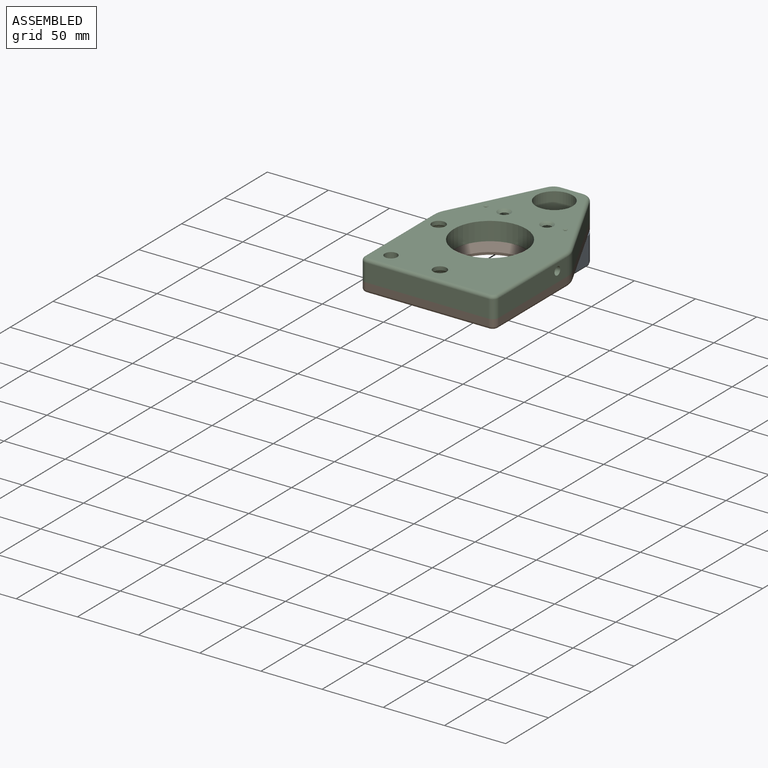
[diagram: assembled view]
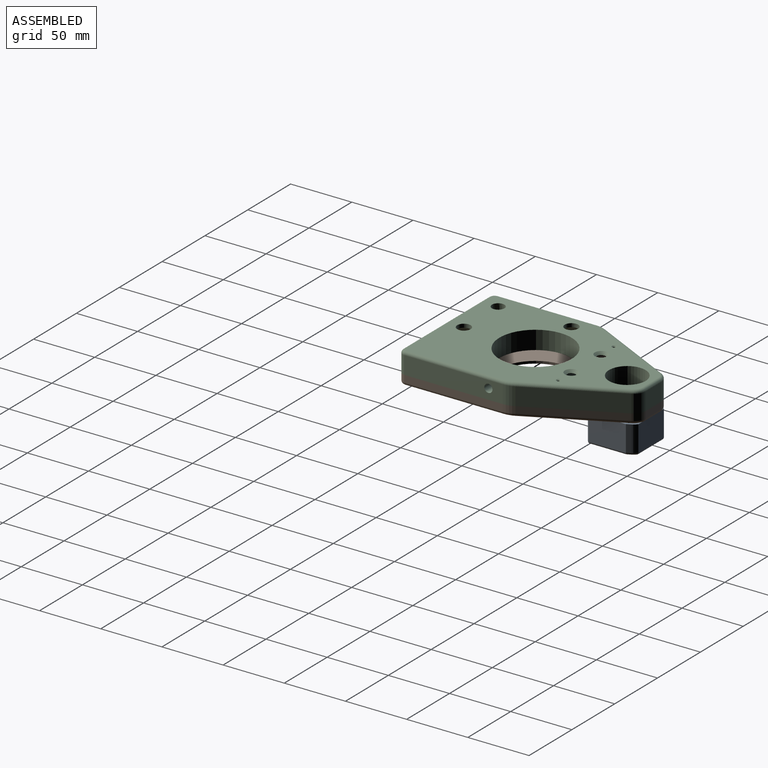
[diagram: assembled view, second angle]
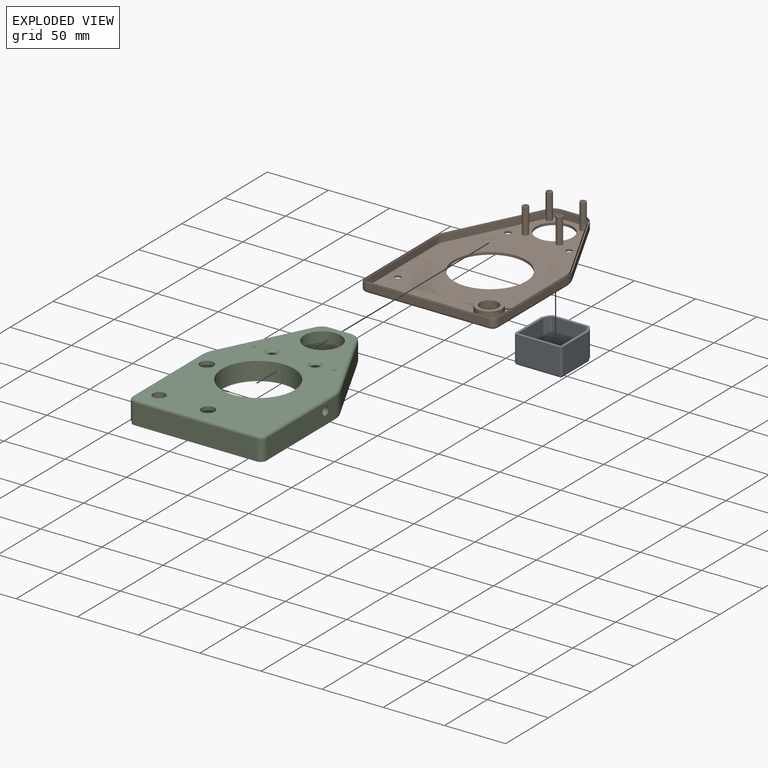
[diagram: exploded view]
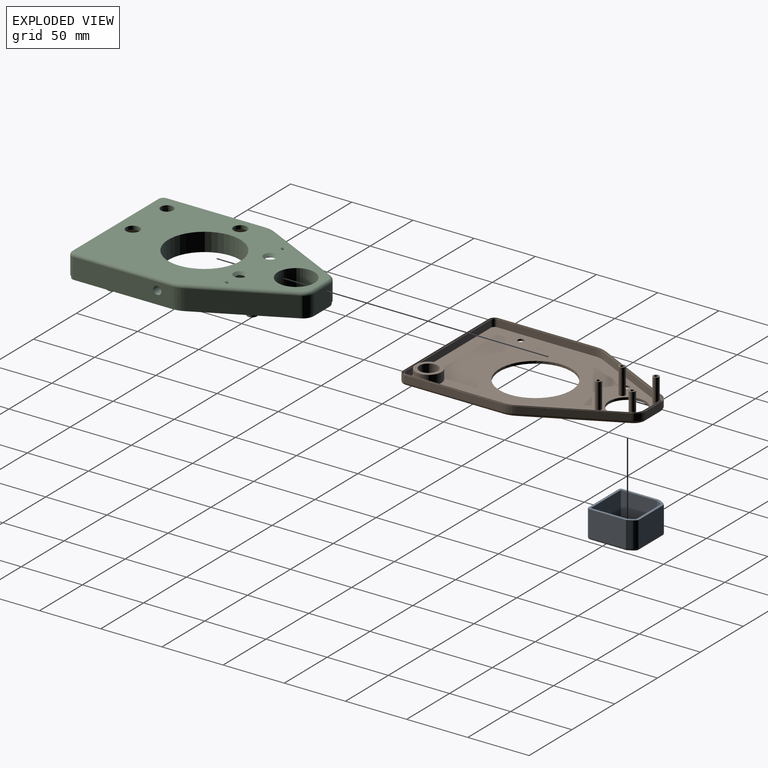
[diagram: exploded view, second angle]
ASSEMBLY  parts=3 mates=2
PART A: 33 faces, bbox 39x39.7x23 mm
  f0: plane 30x21mm, normal (-1,0,0), area 630mm2, adj f1,f9,f20,f22
  f1: plane 21x3.47mm, normal (-0.89,0.45,0), area 81.5mm2, adj f0,f2,f9,f25
  f2: cylinder r=10mm len=21mm, axis (0,0,1), area 97.4mm2, adj f1,f3,f9,f27
  f3: plane 29.64x21mm, normal (0,1,0), area 622.4mm2, adj f2,f4,f9,f29
  f4: cylinder r=10mm len=21mm, axis (0,0,1), area 97.4mm2, adj f3,f5,f9,f31
  f5: plane 21x3.47mm, normal (0.89,0.45,0), area 81.5mm2, adj f4,f6,f9,f30
  f6: plane 30x21mm, normal (1,0,0), area 630mm2, adj f5,f9,f24,f28
  f7: plane 35x21mm, normal (0,-1,0), area 735mm2, adj f9,f20,f23,f24
  f8: plane 35x35mm, normal (0,0,-1), area 1136.1mm2, adj f19,f22,f23,f25,f27,f28,f29,f30
  f9: plane 39x39mm, normal (0,0,1), area 283.2mm2, adj f0,f1,f2,f3,f4,f5,f6,f7
  f10: plane 29.53x21mm, normal (1,0,0), area 620.1mm2, adj f9,f11,f17,f18
  f11: plane 21x3.05mm, normal (0.89,-0.45,0), area 71.6mm2, adj f9,f10,f12,f18
  f12: cylinder r=8mm len=21mm, axis (0,0,1), area 64.6mm2, adj f9,f11,f13,f18
  f13: plane 28.22x21mm, normal (0,-1,0), area 592.7mm2, adj f9,f12,f14,f18
  f14: cylinder r=8mm len=21mm, axis (0,0,1), area 64.6mm2, adj f9,f13,f15,f18
  f15: plane 21x3.05mm, normal (-0.89,-0.45,0), area 71.6mm2, adj f9,f14,f16,f18
  f16: plane 29.53x21mm, normal (-1,0,0), area 620.1mm2, adj f9,f15,f17,f18
  f17: plane 35x21mm, normal (0,1,0), area 735mm2, adj f9,f10,f16,f18
  f18: plane 35x35mm, normal (0,0,1), area 1194.9mm2, adj f10,f11,f12,f13,f14,f15,f16,f17
  f19: torus R=3.5mm, axis (0,0,-1), area 44mm2, adj f8,f18
  f20: cylinder r=2mm len=21mm, axis (0,0,-1), area 66mm2, adj f0,f7,f9,f21
  f21: sphere r=2mm, area 6.3mm2, adj f20,f22,f23
  f22: cylinder r=2mm len=30mm, axis (0,-1,0), area 93.5mm2, adj f0,f8,f21,f25
  f23: cylinder r=2mm len=35mm, axis (1,0,0), area 110mm2, adj f7,f8,f21,f26
  f24: cylinder r=2mm len=21mm, axis (0,0,1), area 66mm2, adj f6,f7,f9,f26
  f25: cylinder r=2mm len=4.37mm, axis (-0.45,-0.89,0), area 11.5mm2, adj f1,f8,f22,f27
  f26: sphere r=2mm, area 6.3mm2, adj f23,f24,f28
  f27: torus R=8mm, axis (0,0,-1), area 12.8mm2, adj f2,f8,f25,f29
  f28: cylinder r=2mm len=30mm, axis (0,1,0), area 93.5mm2, adj f6,f8,f26,f30
  f29: cylinder r=2mm len=29.64mm, axis (-1,0,0), area 91.5mm2, adj f3,f8,f27,f31
  f30: cylinder r=2mm len=4.37mm, axis (-0.45,0.89,0), area 10.5mm2, adj f5,f8,f28,f31,f32
  f31: torus R=8mm, axis (0,0,-1), area 12mm2, adj f4,f8,f29,f30,f32
  f32: torus R=3.5mm, axis (0,0,-1), area 42.1mm2, adj f8,f18,f30,f31
PART B: 90 faces, bbox 113.3x171.2x23 mm
  f0: plane 166.8x106.8mm, normal (0,0,1), area 192.1mm2, adj f1,f2,f3,f4,f5,f6,f7,f8
  f1: plane 80.28x6mm, normal (-1,0,0), area 481.7mm2, adj f0,f2,f24,f51
  f2: cylinder r=3mm len=6mm, axis (0,0,-1), area 28.3mm2, adj f0,f1,f3,f51
  f3: plane 100x6mm, normal (0,1,0), area 600mm2, adj f0,f2,f4,f51
  f4: cylinder r=3mm len=6mm, axis (0,0,-1), area 28.3mm2, adj f0,f3,f5,f51
  f5: plane 80.28x6mm, normal (1,0,0), area 481.7mm2, adj f0,f4,f6,f51
  f6: cylinder r=18mm len=8.05mm, axis (0,0,-1), area 50.1mm2, adj f0,f5,f7,f51
  f7: plane 69.67x34.84mm, normal (0.89,-0.45,0), area 467.4mm2, adj f0,f6,f51,f67
  f8: cylinder r=8mm len=6.97mm, axis (0,0,-1), area 50.8mm2, adj f0,f9,f51,f67
  f9: plane 17.64x6mm, normal (0,-1,0), area 105.8mm2, adj f0,f8,f10,f51
  f10: cylinder r=8mm len=6.97mm, axis (0,0,-1), area 50.8mm2, adj f0,f9,f51,f69
  f11: plane 69.67x34.84mm, normal (-0.89,-0.45,0), area 467.4mm2, adj f0,f24,f51,f69
  f12: plane 80.28x5.5mm, normal (1,0,0), area 441.5mm2, adj f13,f23,f25,f77
  f13: cylinder r=20mm len=8.94mm, axis (0,0,-1), area 51mm2, adj f12,f14,f25,f79
  f14: plane 70.25x35.12mm, normal (0.89,0.45,0), area 432mm2, adj f13,f15,f25,f81
  f15: cylinder r=10mm len=8.94mm, axis (0,0,-1), area 60.9mm2, adj f14,f16,f25,f80
  f16: plane 17.64x5.5mm, normal (0,1,0), area 97mm2, adj f15,f17,f25,f78
  f17: cylinder r=10mm len=8.94mm, axis (0,0,-1), area 60.9mm2, adj f16,f18,f25,f76
  f18: plane 70.25x35.12mm, normal (-0.89,0.45,0), area 432mm2, adj f17,f19,f25,f74
  f19: cylinder r=20mm len=8.94mm, axis (0,0,-1), area 51mm2, adj f18,f20,f25,f72
  f20: plane 80.28x5.5mm, normal (-1,0,0), area 441.5mm2, adj f19,f21,f25,f70
  f21: cylinder r=5mm len=5.5mm, axis (0,0,-1), area 43.2mm2, adj f20,f22,f25,f71
  f22: plane 100x5.5mm, normal (0,-1,0), area 550mm2, adj f21,f23,f25,f73
  f23: cylinder r=5mm len=5.5mm, axis (0,0,-1), area 43.2mm2, adj f12,f22,f25,f75
  f24: cylinder r=18mm len=8.05mm, axis (0,0,-1), area 50.1mm2, adj f0,f1,f11,f51
  f25: plane 170x110mm, normal (0,0,1), area 196.2mm2, adj f12,f13,f14,f15,f16,f17,f18,f19
  f26: plane 80.28x2.6mm, normal (1,0,0), area 208.7mm2, adj f0,f27,f49,f50
  f27: cylinder r=3.4mm len=3.4mm, axis (0,0,-1), area 13.9mm2, adj f0,f26,f28,f50
  f28: plane 100x2.6mm, normal (0,-1,0), area 260mm2, adj f0,f27,f29,f50
  f29: cylinder r=3.4mm len=3.4mm, axis (0,0,-1), area 13.9mm2, adj f0,f28,f30,f50
  f30: plane 80.28x2.6mm, normal (-1,0,0), area 208.7mm2, adj f0,f29,f31,f50
  f31: cylinder r=18.4mm len=8.23mm, axis (0,0,-1), area 22.2mm2, adj f0,f30,f32,f50
  f32: plane 70.25x35.12mm, normal (-0.89,0.45,0), area 204.2mm2, adj f0,f31,f33,f50
  f33: cylinder r=8.4mm len=7.51mm, axis (0,0,-1), area 24.2mm2, adj f0,f32,f34,f50
  f34: plane 17.64x2.6mm, normal (0,1,0), area 45.9mm2, adj f0,f33,f35,f50
  f35: cylinder r=8.4mm len=7.51mm, axis (0,0,-1), area 24.2mm2, adj f0,f34,f36,f50
  f36: plane 70.25x35.12mm, normal (0.89,0.45,0), area 204.2mm2, adj f0,f35,f49,f50
  f37: plane 80.28x2.6mm, normal (-1,0,0), area 208.7mm2, adj f25,f38,f48,f50
  f38: cylinder r=19.6mm len=8.77mm, axis (0,0,-1), area 23.6mm2, adj f25,f37,f39,f50
  f39: plane 70.25x35.12mm, normal (-0.89,-0.45,0), area 204.2mm2, adj f25,f38,f40,f50
  f40: cylinder r=9.6mm len=8.59mm, axis (0,0,-1), area 27.6mm2, adj f25,f39,f41,f50
  f41: plane 17.64x2.6mm, normal (0,-1,0), area 45.9mm2, adj f25,f40,f42,f50
  f42: cylinder r=9.6mm len=8.59mm, axis (0,0,-1), area 27.6mm2, adj f25,f41,f43,f50
  f43: plane 70.25x35.12mm, normal (0.89,-0.45,0), area 204.2mm2, adj f25,f42,f44,f50
  f44: cylinder r=19.6mm len=8.77mm, axis (0,0,-1), area 23.6mm2, adj f25,f43,f45,f50
  f45: plane 80.28x2.6mm, normal (1,0,0), area 208.7mm2, adj f25,f44,f46,f50
  f46: cylinder r=4.6mm len=4.6mm, axis (0,0,-1), area 18.8mm2, adj f25,f45,f47,f50
  f47: plane 100x2.6mm, normal (0,1,0), area 260mm2, adj f25,f46,f48,f50
  f48: cylinder r=4.6mm len=4.6mm, axis (0,0,-1), area 18.8mm2, adj f25,f37,f47,f50
  f49: cylinder r=18.4mm len=8.23mm, axis (0,0,-1), area 22.2mm2, adj f0,f26,f36,f50
  f50: plane 169.2x109.2mm, normal (0,0,1), area 582.5mm2, adj f26,f27,f28,f29,f30,f31,f32,f33
  f51: plane 166x106mm, normal (0,0,1), area 10558mm2, adj f1,f2,f3,f4,f5,f6,f7,f8
  f52: cylinder r=29.5mm len=59mm, axis (0,0,1), area 370.7mm2, adj f51,f58
  f53: cylinder r=15mm len=30mm, axis (0,0,1), area 188.5mm2, adj f51,f58
  f54: cylinder r=1.5mm len=23mm, axis (0,0,1), area 216.8mm2, adj f58,f66
  f55: cylinder r=1.5mm len=23mm, axis (0,0,1), area 216.8mm2, adj f58,f68
  f56: cylinder r=1.5mm len=23mm, axis (0,0,1), area 216.8mm2, adj f58,f62
  f57: cylinder r=1.5mm len=23mm, axis (0,0,1), area 216.8mm2, adj f58,f64
  f58: plane 165x105mm, normal (0,0,-1), area 10475.7mm2, adj f52,f53,f54,f55,f56,f57,f61,f70
  f59: cylinder r=10.5mm len=21mm, axis (0,0,-1), area 527.8mm2, adj f51,f60
  f60: plane 21x21mm, normal (0,0,1), area 169.6mm2, adj f59,f61
  f61: cylinder r=7.5mm len=15mm, axis (0,0,-1), area 471.2mm2, adj f58,f60
  f62: plane 5x5mm, normal (0,0,1), area 12.6mm2, adj f56,f63
  f63: cylinder r=2.5mm len=21mm, axis (0,0,1), area 329.9mm2, adj f51,f62
  f64: plane 5x5mm, normal (0,0,1), area 12.6mm2, adj f57,f65
  f65: cylinder r=2.5mm len=21mm, axis (0,0,1), area 329.9mm2, adj f51,f64
  f66: plane 5x5mm, normal (0,0,1), area 12.6mm2, adj f54,f67
  f67: cylinder r=2.5mm len=21mm, axis (0,0,1), area 323.6mm2, adj f0,f7,f8,f51,f66
  f68: plane 5x5mm, normal (0,0,1), area 12.6mm2, adj f55,f69
  f69: cylinder r=2.5mm len=21mm, axis (0,0,1), area 323.6mm2, adj f0,f10,f11,f51,f68
  f70: cylinder r=2.5mm len=80.28mm, axis (0,1,0), area 315.3mm2, adj f20,f58,f71,f72
  f71: torus R=2.5mm, axis (0,0,1), area 25.2mm2, adj f21,f58,f70,f73
  f72: torus R=17.5mm, axis (0,0,1), area 34.8mm2, adj f19,f58,f70,f74
  f73: cylinder r=2.5mm len=100mm, axis (-1,0,0), area 392.7mm2, adj f22,f58,f71,f75
  f74: cylinder r=2.5mm len=71.37mm, axis (0.45,0.89,0), area 308.4mm2, adj f18,f58,f72,f76
  f75: torus R=2.5mm, axis (0,0,1), area 25.2mm2, adj f23,f58,f73,f77
  f76: torus R=7.5mm, axis (0,0,1), area 39.5mm2, adj f17,f58,f74,f78
  f77: cylinder r=2.5mm len=80.28mm, axis (0,1,0), area 315.3mm2, adj f12,f58,f75,f79
  f78: cylinder r=2.5mm len=17.64mm, axis (-1,0,0), area 69.3mm2, adj f16,f58,f76,f80
  f79: torus R=17.5mm, axis (0,0,1), area 34.8mm2, adj f13,f58,f77,f81
  f80: torus R=7.5mm, axis (0,0,1), area 39.5mm2, adj f15,f58,f78,f81
  f81: cylinder r=2.5mm len=71.37mm, axis (-0.45,0.89,0), area 308.4mm2, adj f14,f58,f79,f80
  f82: cylinder r=2.5mm len=5mm, axis (0,0,-1), area 17.9mm2, adj f51,f83
  f83: cone r=2.5mm half-angle=45deg, axis (0,0,-1), area 22.4mm2, adj f58,f82
  f84: cylinder r=2.5mm len=5mm, axis (0,0,-1), area 17.9mm2, adj f51,f85
  f85: cone r=2.5mm half-angle=45deg, axis (0,0,-1), area 22.4mm2, adj f58,f84
  f86: cylinder r=2.5mm len=5mm, axis (0,0,-1), area 17.9mm2, adj f51,f87
  f87: cone r=2.5mm half-angle=45deg, axis (0,0,-1), area 22.4mm2, adj f58,f86
  f88: cylinder r=2.5mm len=5mm, axis (0,0,-1), area 17.9mm2, adj f51,f89
  f89: cone r=2.5mm half-angle=45deg, axis (0,0,-1), area 22.4mm2, adj f58,f88
PART C: 129 faces, bbox 113.3x171.2x24.4 mm
  f0: cylinder r=32.5mm len=65mm, axis (0,0,-1), area 2452.5mm2, adj f29,f59,f65,f66,f69,f71,f85,f86
  f1: plane 80.28x15mm, normal (-1,0,0), area 1044.2mm2, adj f26,f27,f29,f31,f85,f86,f87,f88
  f2: plane 7.5x7.5mm, normal (0,0,-1), area 10mm2, adj f80,f83
  f3: plane 7.5x7.5mm, normal (0,0,-1), area 10mm2, adj f77,f84
  f4: cylinder r=29.5mm len=59mm, axis (0,0,-1), area 2745mm2, adj f17,f59,f60
  f5: cylinder r=10mm len=14.5mm, axis (0,0,-1), area 160.5mm2, adj f6,f16,f32,f95
  f6: plane 17.64x14.5mm, normal (0,1,0), area 255.8mm2, adj f5,f7,f32,f93
  f7: cylinder r=10mm len=14.5mm, axis (0,0,-1), area 160.5mm2, adj f6,f8,f32,f91
  f8: plane 70.25x35.12mm, normal (-0.89,0.45,0), area 1138.8mm2, adj f7,f9,f32,f89
  f9: cylinder r=20mm len=14.5mm, axis (0,0,-1), area 134.5mm2, adj f8,f10,f32,f90
  f10: plane 80.28x14.5mm, normal (-1,0,0), area 1164mm2, adj f9,f11,f32,f92
  f11: cylinder r=5mm len=14.5mm, axis (0,0,-1), area 113.9mm2, adj f10,f12,f32,f94
  f12: plane 100x14.5mm, normal (0,-1,0), area 1450mm2, adj f11,f13,f32,f96
  f13: cylinder r=5mm len=14.5mm, axis (0,0,-1), area 113.9mm2, adj f12,f14,f32,f98
  f14: plane 80.28x14.5mm, normal (1,0,0), area 1128.8mm2, adj f13,f15,f32,f60,f100
  f15: cylinder r=20mm len=14.5mm, axis (0,0,-1), area 134.5mm2, adj f14,f16,f32,f99
  f16: plane 70.25x35.12mm, normal (0.89,0.45,0), area 1138.8mm2, adj f5,f15,f32,f97
  f17: plane 165x105mm, normal (0,0,1), area 10355mm2, adj f4,f30,f58,f67,f68,f83,f84,f89
  f18: cylinder r=8mm len=15mm, axis (0,0,-1), area 132.9mm2, adj f19,f28,f29,f31
  f19: plane 17.64x15mm, normal (0,-1,0), area 264.6mm2, adj f18,f20,f29,f31
  f20: cylinder r=8mm len=15mm, axis (0,0,-1), area 132.9mm2, adj f19,f21,f29,f31
  f21: plane 70.25x35.12mm, normal (0.89,-0.45,0), area 1178.1mm2, adj f20,f22,f29,f31
  f22: cylinder r=18mm len=15mm, axis (0,0,-1), area 125.2mm2, adj f21,f23,f29,f31
  f23: plane 80.28x15mm, normal (1,0,0), area 1204.2mm2, adj f22,f24,f29,f31
  f24: cylinder r=3mm len=15mm, axis (0,0,-1), area 70.7mm2, adj f23,f25,f29,f31
  f25: plane 100x15mm, normal (0,1,0), area 1500mm2, adj f24,f26,f29,f31
  f26: cylinder r=3mm len=15mm, axis (0,0,-1), area 70.7mm2, adj f1,f25,f29,f31
  f27: cylinder r=18mm len=15mm, axis (0,0,-1), area 125.2mm2, adj f1,f28,f29,f31
  f28: plane 70.25x35.12mm, normal (-0.89,-0.45,0), area 1178.1mm2, adj f18,f27,f29,f31
  f29: plane 166x106mm, normal (0,0,-1), area 8652.4mm2, adj f0,f1,f18,f19,f20,f21,f22,f23
  f30: cone r=6.5mm half-angle=4deg, axis (0,0,-1), area 454.9mm2, adj f17,f62
  f31: plane 167.2x107.2mm, normal (0,0,-1), area 288.6mm2, adj f1,f18,f19,f20,f21,f22,f23,f24
  f32: plane 170x110mm, normal (0,0,-1), area 293.9mm2, adj f5,f6,f7,f8,f9,f10,f11,f12
  f33: cylinder r=9.4mm len=8.41mm, axis (0,0,-1), area 25mm2, adj f32,f34,f56,f57
  f34: plane 70.25x35.12mm, normal (0.89,0.45,0), area 188.5mm2, adj f32,f33,f35,f57
  f35: cylinder r=19.4mm len=8.68mm, axis (0,0,-1), area 21.6mm2, adj f32,f34,f36,f57
  f36: plane 80.28x2.4mm, normal (1,0,0), area 192.7mm2, adj f32,f35,f37,f57
  f37: cylinder r=4.4mm len=4.4mm, axis (0,0,-1), area 16.6mm2, adj f32,f36,f38,f57
  f38: plane 100x2.4mm, normal (0,-1,0), area 240mm2, adj f32,f37,f39,f57
  f39: cylinder r=4.4mm len=4.4mm, axis (0,0,-1), area 16.6mm2, adj f32,f38,f40,f57
  f40: plane 80.28x2.4mm, normal (-1,0,0), area 192.7mm2, adj f32,f39,f41,f57
  f41: cylinder r=19.4mm len=8.68mm, axis (0,0,-1), area 21.6mm2, adj f32,f40,f42,f57
  f42: plane 70.25x35.12mm, normal (-0.89,0.45,0), area 188.5mm2, adj f32,f41,f43,f57
  f43: cylinder r=9.4mm len=8.41mm, axis (0,0,-1), area 25mm2, adj f32,f42,f56,f57
  f44: plane 70.25x35.12mm, normal (-0.89,-0.45,0), area 188.5mm2, adj f31,f45,f55,f57
  f45: cylinder r=8.6mm len=7.69mm, axis (0,0,-1), area 22.9mm2, adj f31,f44,f46,f57
  f46: plane 17.64x2.4mm, normal (0,-1,0), area 42.3mm2, adj f31,f45,f47,f57
  f47: cylinder r=8.6mm len=7.69mm, axis (0,0,-1), area 22.9mm2, adj f31,f46,f48,f57
  f48: plane 70.25x35.12mm, normal (0.89,-0.45,0), area 188.5mm2, adj f31,f47,f49,f57
  f49: cylinder r=18.6mm len=8.32mm, axis (0,0,-1), area 20.7mm2, adj f31,f48,f50,f57
  f50: plane 80.28x2.4mm, normal (1,0,0), area 192.7mm2, adj f31,f49,f51,f57
  f51: cylinder r=3.6mm len=3.6mm, axis (0,0,-1), area 13.6mm2, adj f31,f50,f52,f57
  f52: plane 100x2.4mm, normal (0,1,0), area 240mm2, adj f31,f51,f53,f57
  f53: cylinder r=3.6mm len=3.6mm, axis (0,0,-1), area 13.6mm2, adj f31,f52,f54,f57
  f54: plane 80.28x2.4mm, normal (-1,0,0), area 192.7mm2, adj f31,f53,f55,f57
  f55: cylinder r=18.6mm len=8.32mm, axis (0,0,-1), area 20.7mm2, adj f31,f44,f54,f57
  f56: plane 17.64x2.4mm, normal (0,1,0), area 42.3mm2, adj f32,f33,f43,f57
  f57: plane 168.8x108.8mm, normal (0,0,-1), area 388.3mm2, adj f33,f34,f35,f36,f37,f38,f39,f40
  f58: cylinder r=15mm len=30mm, axis (0,0,-1), area 1885mm2, adj f17,f102
  f59: plane 65x65mm, normal (0,0,-1), area 584.3mm2, adj f0,f4
  f60: cylinder r=3.35mm len=25.69mm, axis (1,0,0), area 538.8mm2, adj f4,f14
  f61: cylinder r=9.5mm len=19mm, axis (0,0,-1), area 656.6mm2, adj f29,f62
  f62: plane 19x19mm, normal (0,0,-1), area 170mm2, adj f30,f61
  f63: cylinder r=10mm len=20mm, axis (0,0,-1), area 188.5mm2, adj f29,f64
  f64: plane 20x20mm, normal (0,0,-1), area 24.6mm2, adj f63,f73
  f65: cylinder r=10mm len=20mm, axis (0,0,-1), area 171.8mm2, adj f0,f29,f66
  f66: plane 20x19.62mm, normal (0,0,-1), area 23mm2, adj f0,f65,f71
  f67: cylinder r=5.5mm len=11mm, axis (0,0,1), area 103.7mm2, adj f17,f76
  f68: cylinder r=5.5mm len=11mm, axis (0,0,1), area 103.7mm2, adj f17,f72
  f69: plane 20.8x20.11mm, normal (0,0,-1), area 113.6mm2, adj f0,f70,f71
  f70: sphere r=8.4mm, area 316.7mm2, adj f69,f72
  f71: sphere r=10.4mm, area 236.1mm2, adj f0,f66,f69
  f72: plane 11.76x11.76mm, normal (0,0,-1), area 13.5mm2, adj f68,f70
  f73: sphere r=10.4mm, area 261.4mm2, adj f64,f74
  f74: plane 20.8x20.8mm, normal (0,0,-1), area 118.1mm2, adj f73,f75
  f75: sphere r=8.4mm, area 316.7mm2, adj f74,f76
  f76: plane 11.76x11.76mm, normal (0,0,-1), area 13.5mm2, adj f67,f75
  f77: cylinder r=3.75mm len=7.5mm, axis (0,0,-1), area 11.8mm2, adj f3,f79
  f78: cylinder r=5.25mm len=10.5mm, axis (0,0,-1), area 16.5mm2, adj f29,f79
  f79: plane 10.5x10.5mm, normal (0,0,-1), area 42.4mm2, adj f77,f78
  f80: cylinder r=3.75mm len=7.5mm, axis (0,0,-1), area 11.8mm2, adj f2,f82
  f81: cylinder r=5.25mm len=10.5mm, axis (0,0,-1), area 16.5mm2, adj f29,f82
  f82: plane 10.5x10.5mm, normal (0,0,-1), area 42.4mm2, adj f80,f81
  f83: cone r=3mm half-angle=45deg, axis (0,0,1), area 76.4mm2, adj f2,f17
  f84: cone r=3mm half-angle=45deg, axis (0,0,1), area 76.4mm2, adj f3,f17
  f85: plane 21.3x11.2mm, normal (0,1,0), area 238.6mm2, adj f0,f1,f86,f88
  f86: plane 21.3x14.29mm, normal (0,0,-1), area 296.7mm2, adj f0,f1,f85,f87
  f87: plane 21.29x11.2mm, normal (0,-1,0), area 238.4mm2, adj f0,f1,f86,f88
  f88: plane 21.3x14.29mm, normal (0,0,1), area 296.7mm2, adj f0,f1,f85,f87
  f89: cylinder r=2.5mm len=71.37mm, axis (0.45,0.89,0), area 308.4mm2, adj f8,f17,f90,f91
  f90: torus R=17.5mm, axis (0,0,1), area 34.8mm2, adj f9,f17,f89,f92
  f91: torus R=7.5mm, axis (0,0,1), area 39.5mm2, adj f7,f17,f89,f93
  f92: cylinder r=2.5mm len=80.28mm, axis (0,1,0), area 315.3mm2, adj f10,f17,f90,f94
  f93: cylinder r=2.5mm len=17.64mm, axis (1,0,0), area 69.3mm2, adj f6,f17,f91,f95
  f94: torus R=2.5mm, axis (0,0,1), area 25.2mm2, adj f11,f17,f92,f96
  f95: torus R=7.5mm, axis (0,0,1), area 39.5mm2, adj f5,f17,f93,f97
  f96: cylinder r=2.5mm len=100mm, axis (-1,0,0), area 392.7mm2, adj f12,f17,f94,f98
  f97: cylinder r=2.5mm len=71.37mm, axis (0.45,-0.89,0), area 308.4mm2, adj f16,f17,f95,f99
  f98: torus R=2.5mm, axis (0,0,1), area 25.2mm2, adj f13,f17,f96,f100
  f99: torus R=17.5mm, axis (0,0,1), area 34.8mm2, adj f15,f17,f97,f100
  f100: cylinder r=2.5mm len=80.28mm, axis (0,-1,0), area 315.3mm2, adj f14,f17,f98,f99
  f101: cylinder r=17mm len=34mm, axis (0,0,-1), area 1922.7mm2, adj f29,f102
  f102: plane 34x34mm, normal (0,0,-1), area 201.1mm2, adj f58,f101
  f103: cylinder r=6mm len=12mm, axis (0,0,1), area 56.5mm2, adj f29,f104
  f104: plane 12x12mm, normal (0,0,-1), area 113.1mm2, adj f103
  f105: cylinder r=6mm len=12mm, axis (0,0,1), area 56.5mm2, adj f29,f106
  f106: plane 12x12mm, normal (0,0,-1), area 110mm2, adj f105,f111
  f107: cylinder r=6mm len=12mm, axis (0,0,1), area 56.5mm2, adj f29,f108
  f108: plane 12x12mm, normal (0,0,-1), area 110mm2, adj f107,f109
  f109: cylinder r=1mm len=2.75mm, axis (0,0,1), area 17.3mm2, adj f108,f110
  f110: cone r=1mm half-angle=45deg, axis (0,0,1), area 9.2mm2, adj f17,f109
  f111: cylinder r=1mm len=2.75mm, axis (0,0,1), area 17.3mm2, adj f106,f112
  f112: cone r=1mm half-angle=45deg, axis (0,0,1), area 9.2mm2, adj f17,f111
  f113: cylinder r=4mm len=21mm, axis (0,0,1), area 527.8mm2, adj f29,f114
  f114: plane 8x8mm, normal (0,0,-1), area 45.4mm2, adj f113,f123
  f115: cylinder r=4mm len=21mm, axis (0,0,1), area 527.8mm2, adj f29,f116
  f116: plane 8x8mm, normal (0,0,-1), area 45.4mm2, adj f115,f125
  f117: cylinder r=4mm len=21mm, axis (0,0,1), area 527.8mm2, adj f29,f118
  f118: plane 8x8mm, normal (0,0,-1), area 45.4mm2, adj f117,f121
  f119: cylinder r=4mm len=21mm, axis (0,0,1), area 527.8mm2, adj f29,f120
  f120: plane 8x8mm, normal (0,0,-1), area 45.4mm2, adj f119,f127
  f121: cylinder r=1.25mm len=20mm, axis (0,0,-1), area 157.1mm2, adj f118,f122
  f122: cone r=0mm half-angle=59deg, axis (0,0,-1), area 5.7mm2, adj f121
  f123: cylinder r=1.25mm len=20mm, axis (0,0,-1), area 157.1mm2, adj f114,f124
  f124: cone r=0mm half-angle=59deg, axis (0,0,-1), area 5.7mm2, adj f123
  f125: cylinder r=1.25mm len=20mm, axis (0,0,-1), area 157.1mm2, adj f116,f126
  f126: cone r=0mm half-angle=59deg, axis (0,0,-1), area 5.7mm2, adj f125
  f127: cylinder r=1.25mm len=20mm, axis (0,0,-1), area 157.1mm2, adj f120,f128
  f128: cone r=0mm half-angle=59deg, axis (0,0,-1), area 5.7mm2, adj f127
PLACE A t=(-16.44,0.24,108.27)mm
PLACE B t=(-16.44,0.24,83.35)mm
PLACE C t=(-16.44,0.24,36.35)mm
MATE slider B.f22 <-> C.f12  axis (0,-1,0) through (-66.44,-89.76,39.35)mm
MATE pin_slot A.f32 <-> B.f55  axis (0,0,-1) through (-2.59,72.59,8.85)mm
